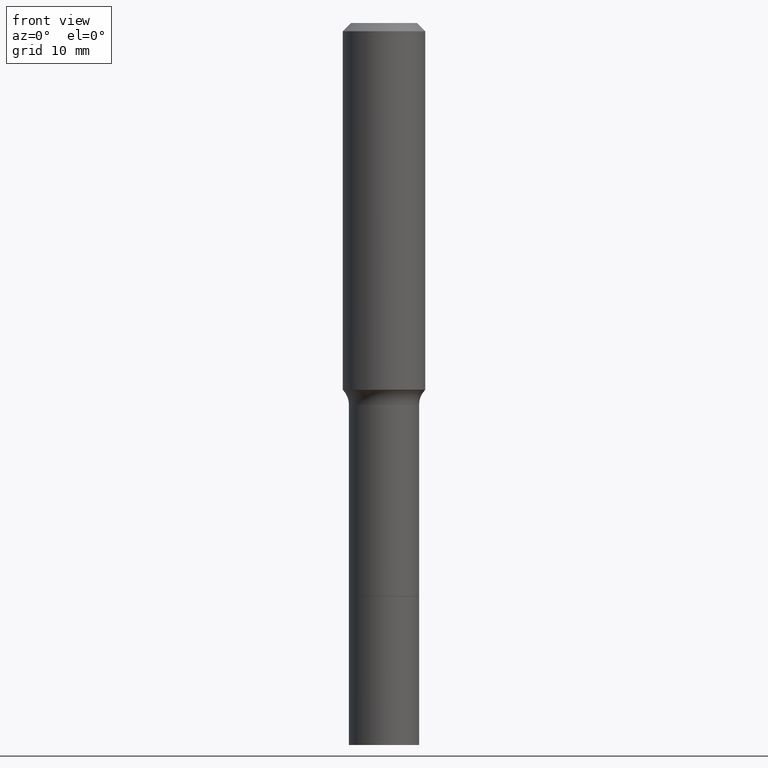
[diagram: clean part render]
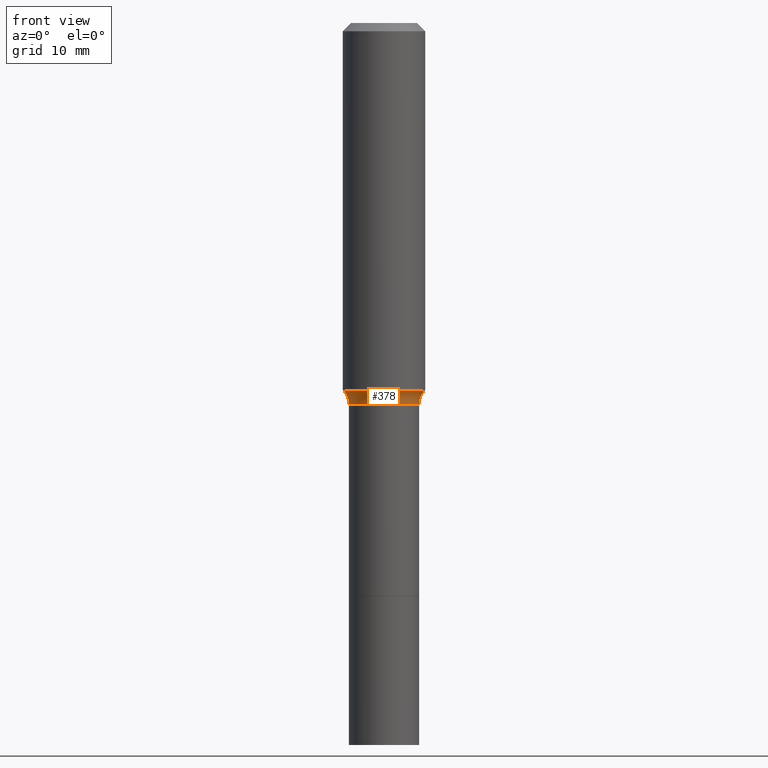
[diagram: same view with one face highlighted and labeled with its STEP entity id]
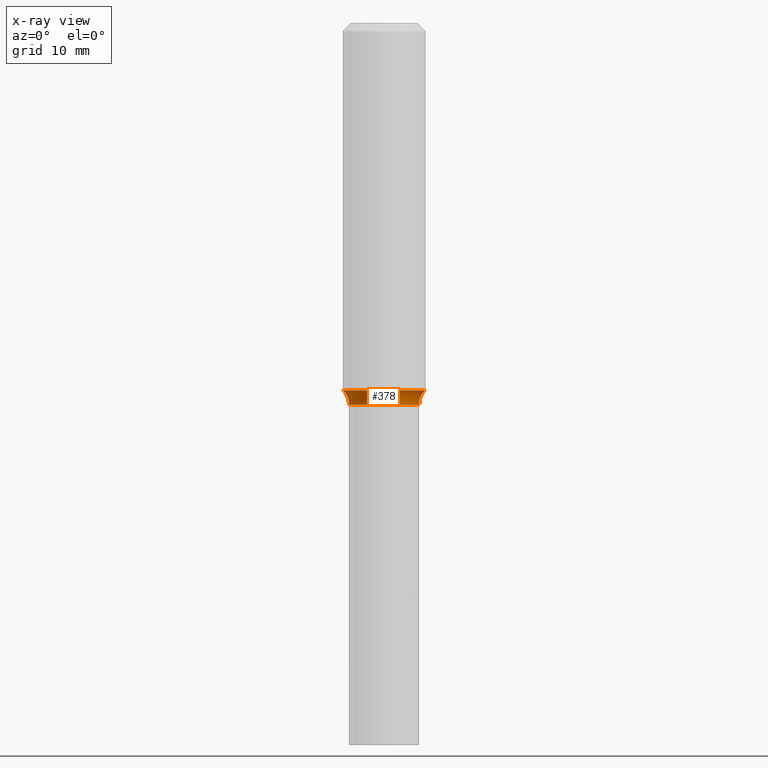
[diagram: x-ray of the same camera — body ghosted, the highlighted face saturated]
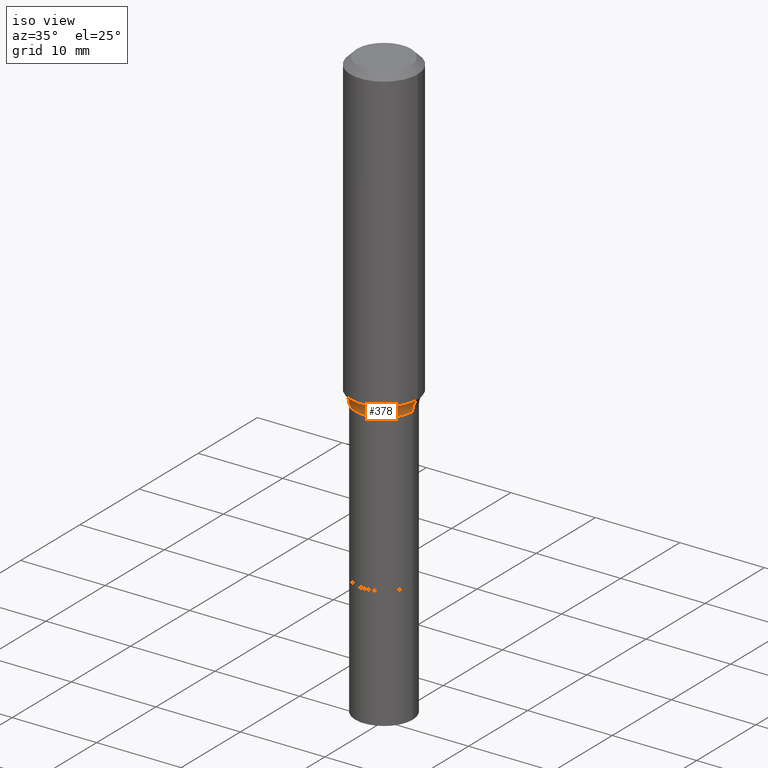
[diagram: same view with one face highlighted and labeled with its STEP entity id]
A machine part, front view. The second image highlights one B-rep face of the part: STEP entity #378.
The next image is the same camera in x-ray: the body ghosted, the highlighted face saturated — about 0% of this face is hidden behind the body in this view.
A second angle (iso view) of the same face is appended — the face is thin or edge-on in the first view.
In plain terms, the highlighted toroidal blend (fillet) surface has major radius 5.4318 mm and minor (blend) radius 2.032 mm.
Its self-contained STEP definition (entity closure, byte-faithful):
#17 = CARTESIAN_POINT ( 'NONE',  ( 3.562803503731125923E-29, -5.086739162560578258E-15, -1.456899999999999862 ) ) ;
#25 = EDGE_LOOP ( 'NONE', ( #391, #498, #419, #209 ) ) ;
#31 = VERTEX_POINT ( 'NONE', #487 ) ;
#60 = DIRECTION ( 'NONE',  ( 1.000000000000000000, -6.982962677686265133E-15, 0.000000000000000000 ) ) ;
#64 = AXIS2_PLACEMENT_3D ( 'NONE', #68, #424, #218 ) ;
#68 = CARTESIAN_POINT ( 'NONE',  ( 0.2138499999999999568, -6.580045731183786053E-15, -1.456899999999999862 ) ) ;
#102 = CIRCLE ( 'NONE', #398, 0.1553417038704660580 ) ;
#107 = TOROIDAL_SURFACE ( 'NONE', #435, 0.2138499999999999568, 0.08000000000000000167 ) ;
#134 = DIRECTION ( 'NONE',  ( -2.445468806185136597E-29, 3.491481338843145583E-15, 1.000000000000000000 ) ) ;
#136 = VERTEX_POINT ( 'NONE', #339 ) ;
#139 = EDGE_CURVE ( 'NONE', #136, #31, #408, .T. ) ;
#146 = EDGE_CURVE ( 'NONE', #31, #438, #460, .T. ) ;
#168 = DIRECTION ( 'NONE',  ( 1.000000000000000000, -6.982962677686267499E-15, 4.883557194083112901E-29 ) ) ;
#180 = AXIS2_PLACEMENT_3D ( 'NONE', #287, #261, #289 ) ;
#194 = CIRCLE ( 'NONE', #64, 0.08000000000000000167 ) ;
#209 = ORIENTED_EDGE ( 'NONE', *, *, #249, .F. ) ;
#218 = DIRECTION ( 'NONE',  ( 1.000000000000000000, -6.982962677686271444E-15, 0.000000000000000000 ) ) ;
#249 = EDGE_CURVE ( 'NONE', #452, #438, #194, .T. ) ;
#261 = DIRECTION ( 'NONE',  ( 7.105427357601001859E-15, 1.000000000000000000, -3.491481338843145583E-15 ) ) ;
#279 = CARTESIAN_POINT ( 'NONE',  ( 0.1553417038704661968, -5.980989719193848286E-15, -1.402340131195000117 ) ) ;
#283 = FACE_OUTER_BOUND ( 'NONE', #25, .T. ) ;
#286 = DIRECTION ( 'NONE',  ( 1.000000000000000000, -6.982962677686266711E-15, 0.000000000000000000 ) ) ;
#287 = CARTESIAN_POINT ( 'NONE',  ( -0.2138499999999999568, -3.567243522137604121E-15, -1.456899999999999862 ) ) ;
#289 = DIRECTION ( 'NONE',  ( -1.000000000000000000, 7.105427357600997914E-15, 0.000000000000000000 ) ) ;
#309 = AXIS2_PLACEMENT_3D ( 'NONE', #517, #134, #60 ) ;
#318 = DIRECTION ( 'NONE',  ( -2.445468806185136597E-29, 3.491481338843145583E-15, 1.000000000000000000 ) ) ;
#339 = CARTESIAN_POINT ( 'NONE',  ( -0.1553417038704661968, -3.792475206320627824E-15, -1.402340131195000117 ) ) ;
#378 = ADVANCED_FACE ( 'NONE', ( #283 ), #107, .F. ) ;
#391 = ORIENTED_EDGE ( 'NONE', *, *, #417, .F. ) ;
#398 = AXIS2_PLACEMENT_3D ( 'NONE', #418, #318, #286 ) ;
#408 = CIRCLE ( 'NONE', #180, 0.08000000000000000167 ) ;
#415 = CARTESIAN_POINT ( 'NONE',  ( 0.1338499999999999135, -6.021408716968884401E-15, -1.456899999999999862 ) ) ;
#417 = EDGE_CURVE ( 'NONE', #136, #452, #102, .T. ) ;
#418 = CARTESIAN_POINT ( 'NONE',  ( 3.429379046498945031E-29, -4.896244398778191776E-15, -1.402340131195000117 ) ) ;
#419 = ORIENTED_EDGE ( 'NONE', *, *, #146, .T. ) ;
#424 = DIRECTION ( 'NONE',  ( -6.982962677686266711E-15, -1.000000000000000000, 3.491481338843145583E-15 ) ) ;
#435 = AXIS2_PLACEMENT_3D ( 'NONE', #17, #461, #168 ) ;
#438 = VERTEX_POINT ( 'NONE', #415 ) ;
#452 = VERTEX_POINT ( 'NONE', #279 ) ;
#460 = CIRCLE ( 'NONE', #309, 0.1338499999999999135 ) ;
#461 = DIRECTION ( 'NONE',  ( -2.445468806185136597E-29, 3.491481338843145583E-15, 1.000000000000000000 ) ) ;
#487 = CARTESIAN_POINT ( 'NONE',  ( -0.1338499999999999135, -5.412687010427565516E-15, -1.456899999999999862 ) ) ;
#498 = ORIENTED_EDGE ( 'NONE', *, *, #139, .T. ) ;
#517 = CARTESIAN_POINT ( 'NONE',  ( 3.562803503731125923E-29, -5.086739162560578258E-15, -1.456899999999999862 ) ) ;